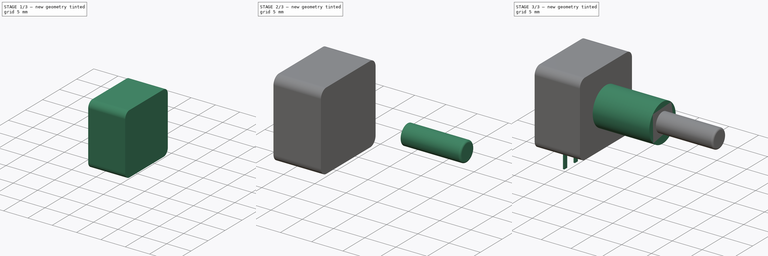
[diagram: build sequence overview — one tinted view per stage of 3, left to right]
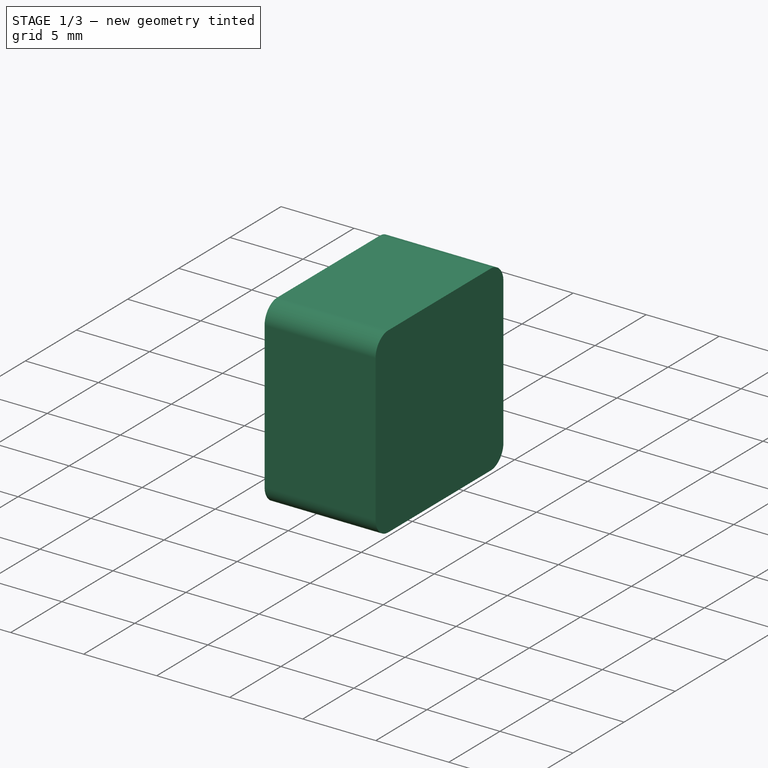
[diagram: stage 1 of 3 — iso view after this stage's code; geometry added in this stage tinted green]
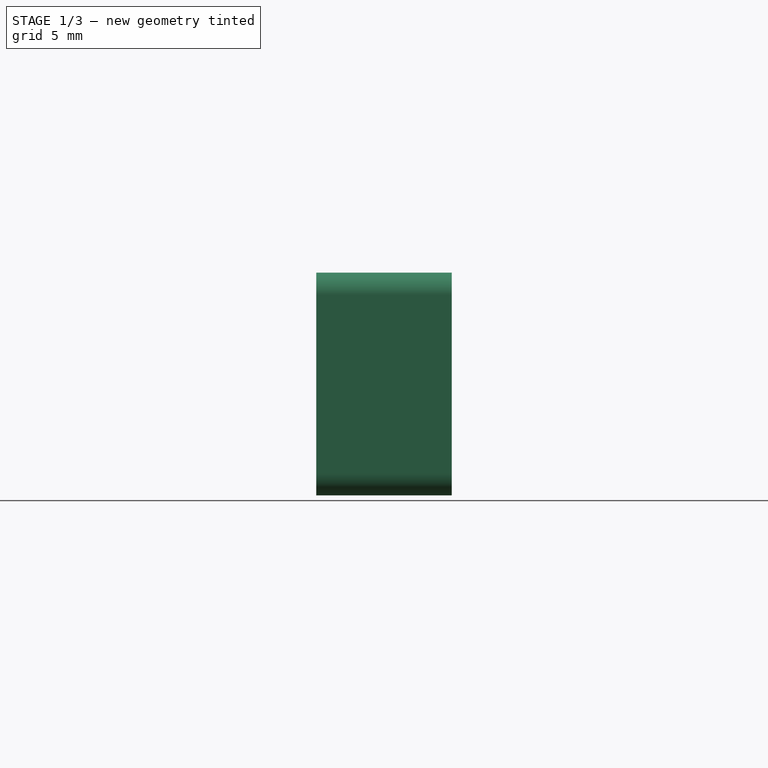
[diagram: stage 1 of 3 — front view after this stage's code; geometry added in this stage tinted green]
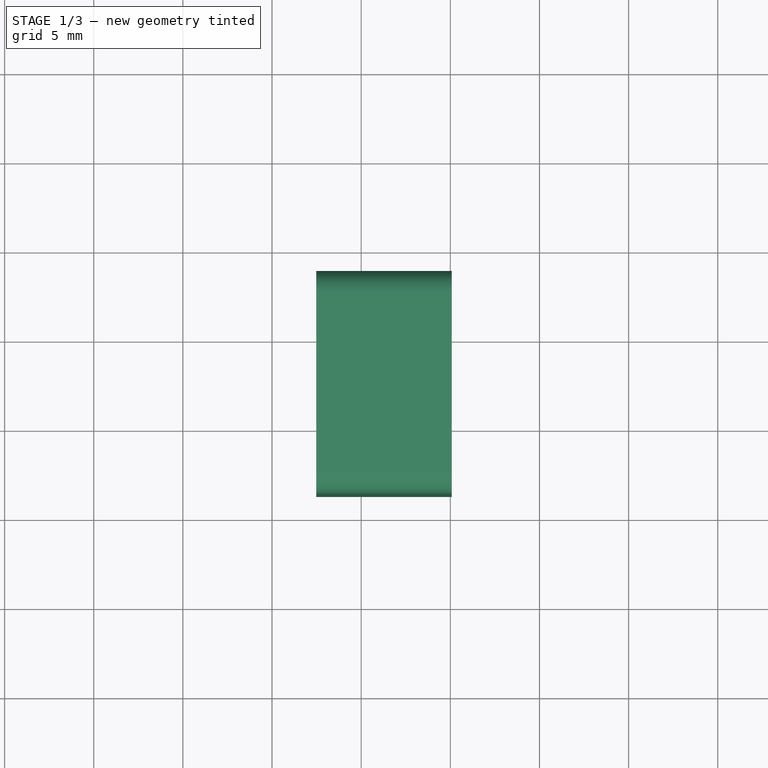
[diagram: stage 1 of 3 — top view after this stage's code; geometry added in this stage tinted green]
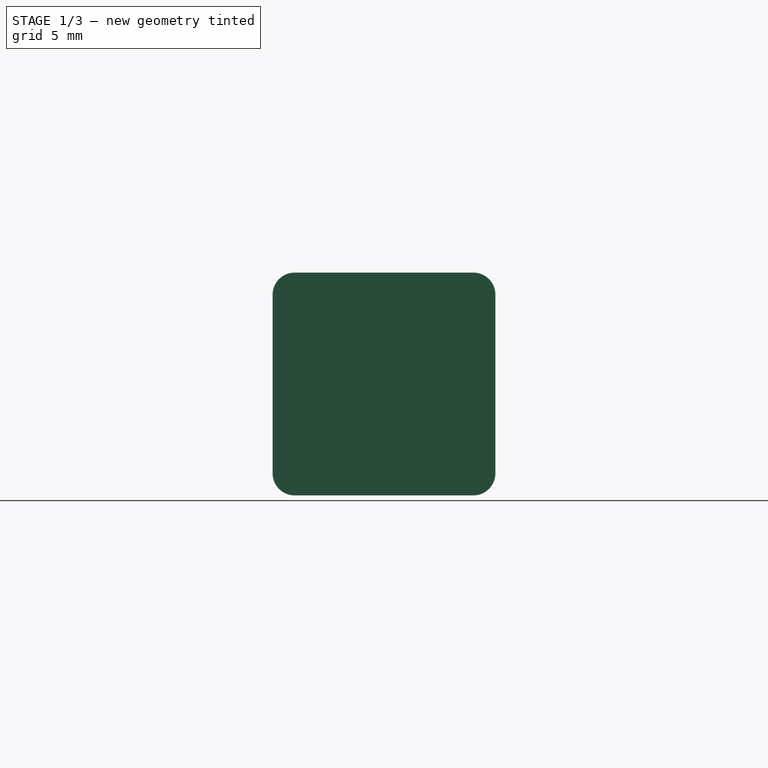
[diagram: stage 1 of 3 — right view after this stage's code; geometry added in this stage tinted green]
FCSTD DOCUMENT  (FreeCAD 0.16R6703 (Git))
Label: Potentiometer_VishaySpectrol_248GH_249GH_Vertical
License: All rights reserved
LicenseURL: http://en.wikipedia.org/wiki/All_rights_reserved
objects: Sketcher::SketchObject×4, PartDesign::Pad×4, PartDesign::Fillet×2, Spreadsheet::Sheet×1
note: 14 computed .brp shape members not serialized (recipe doc carries the construction recipe); baked Part::Feature solids carry a one-line shape summary decoded from their .brp

FEATURE [Spreadsheet::Sheet] Spreadsheet
  cells = A1=var lbody_fab = ; B1(lbody_fab)=-2.52; A2=var tbody_fab = ; B2(tbody_fab)=-8.789999999999999; A3=var wbody_fab = ; B3(wbody_fab)=7.6; A4=var hbody_fab = ; B4(hbody_fab)=12.5; A5=var lscrew_fab = ; B5(lscrew_fab)=5.08; A6=var tscrew_fab = ; B6(tscrew_fab)=-5.715; A7=var wscrew_fab = ; B7(wscrew_fab)=9.5; A8=var hscrew_fab = ; B8(hscrew_fab)=6.35; A9=var lshaft_fab = ; B9(lshaft_fab)=14.58; A10=var tshaft_fab = ; B10(tshaft_fab)=-4.13; A11=var wshaft_fab = ; B11(wshaft_fab)=9.550000000000001; A12=var hshaft_fab = ; B12(hshaft_fab)=3.18; A13=var rmx = ; B13(rmx)=7.62; A14=var rmy = ; B14(rmy)=2.54; A15=var padx = ; B15(padx)=0; A16=var pady = ; B16(pady)=5.08; A17=var d_wire = ; B17(d_wire)=0.7; A18=var height = ; B18(height)=13.1; A19=var screwzpos = ; B19(screwzpos)=6.949999999999999; A20=var mh_rmx = ; B20(mh_rmx)=0; A21=var mh_rmy = ; B21(mh_rmy)=15; A22=var offsetx = ; B22(offsetx)=0; A23=var offsety = ; B23(offsety)=-5.08
FEATURE [Sketcher::SketchObject] Sketch
  Placement = pos=(-2.52,0,0) rot=(0.57735,0.57735,0.57735;2.0944rad)
  expr: Constraints[9] = Spreadsheet.height
  expr: Placement.Base.x = Spreadsheet.lbody_fab
  expr: Constraints[8] = Spreadsheet.tbody_fab
  sketch-geometry (4):
    g0: LineSegment StartX=8.79 StartY=13.1 StartZ=0 EndX=-3.71 EndY=13.1 EndZ=0
    g1: LineSegment StartX=-3.71 StartY=13.1 StartZ=0 EndX=-3.71 EndY=0.6 EndZ=0
    g2: LineSegment StartX=-3.71 StartY=0.6 StartZ=0 EndX=8.79 EndY=0.6 EndZ=0
    g3: LineSegment StartX=8.79 StartY=0.6 StartZ=0 EndX=8.79 EndY=13.1 EndZ=0
  constraints (12):
    c: Coincident(g0,g1)
    c: Coincident(g1,g2)
    c: Coincident(g2,g3)
    c: Coincident(g3,g0)
    c: Horizontal(g0)
    c: Horizontal(g2)
    c: Vertical(g1)
    c: Vertical(g3)
    c: DistanceX(g2,g-1) = -8.79
    c: DistanceY(g-1,g0) = 13.1
    c: DistanceX(g0,g0) = 12.5
    c: DistanceY(g-1,g1) = 0.6
FEATURE [PartDesign::Pad] Pad
  Length = 7.6
  Length2 = 100
  Placement = pos=(-2.52,0,0) rot=(0.57735,0.57735,0.57735;2.0944rad)
  Sketch = -> Sketch
  Type = 0
  expr: Length = abs(Spreadsheet.wbody_fab)
FEATURE [PartDesign::Fillet] Fillet001
  Base = -> Pad [Edge2,Edge1,Edge5,Edge8]
  Placement = pos=(-2.52,0,0) rot=(0.57735,0.57735,0.57735;2.0944rad)
  Radius = 1.25
  expr: Radius = Spreadsheet.hbody_fab * 0.1
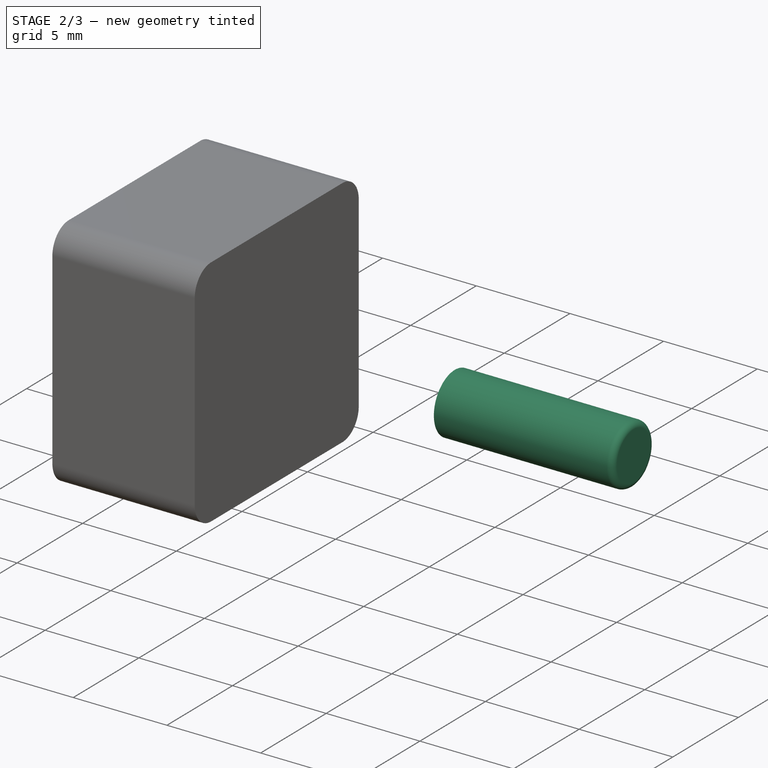
[diagram: stage 2 of 3 — iso view after this stage's code; geometry added in this stage tinted green]
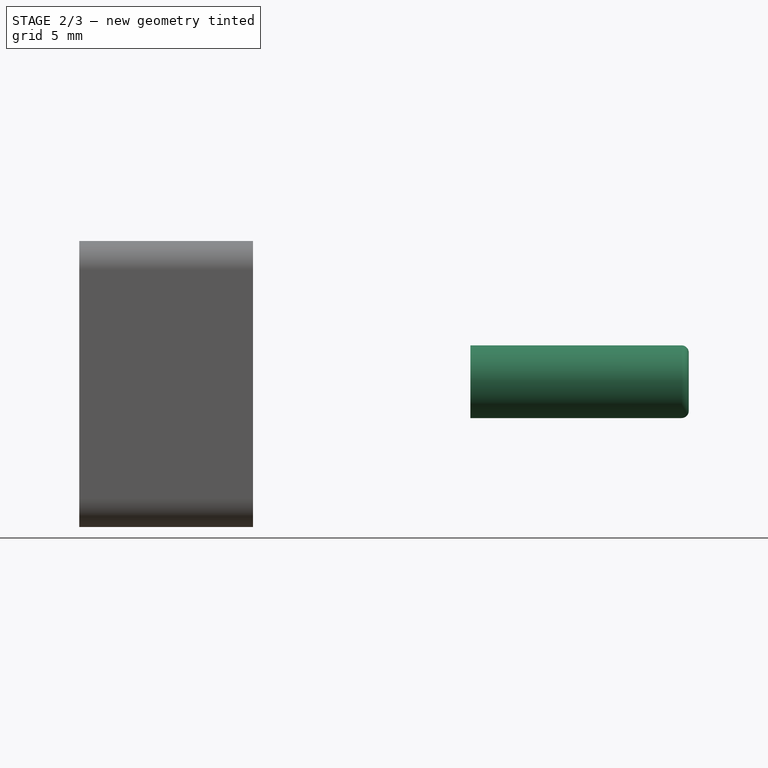
[diagram: stage 2 of 3 — front view after this stage's code; geometry added in this stage tinted green]
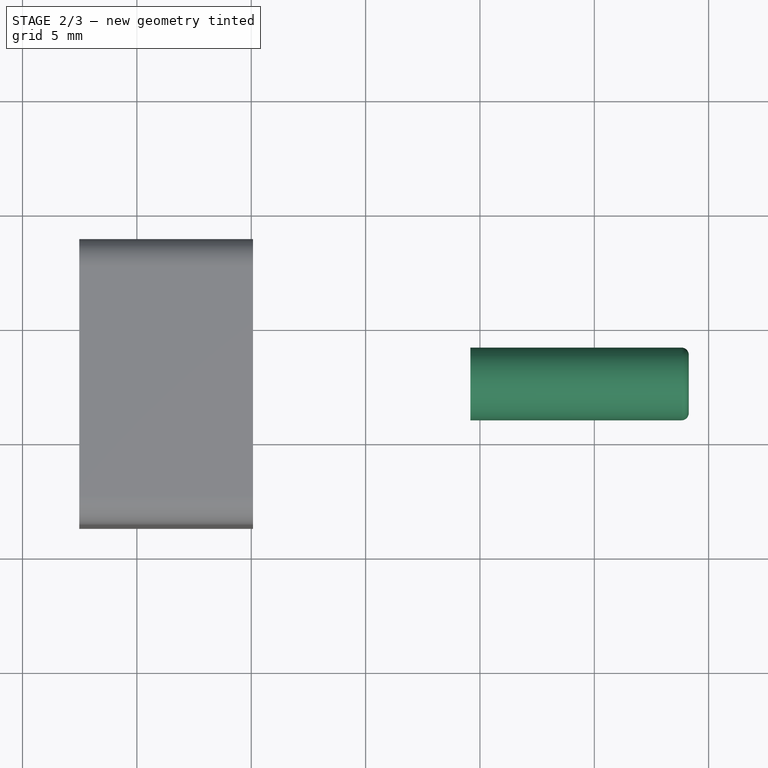
[diagram: stage 2 of 3 — top view after this stage's code; geometry added in this stage tinted green]
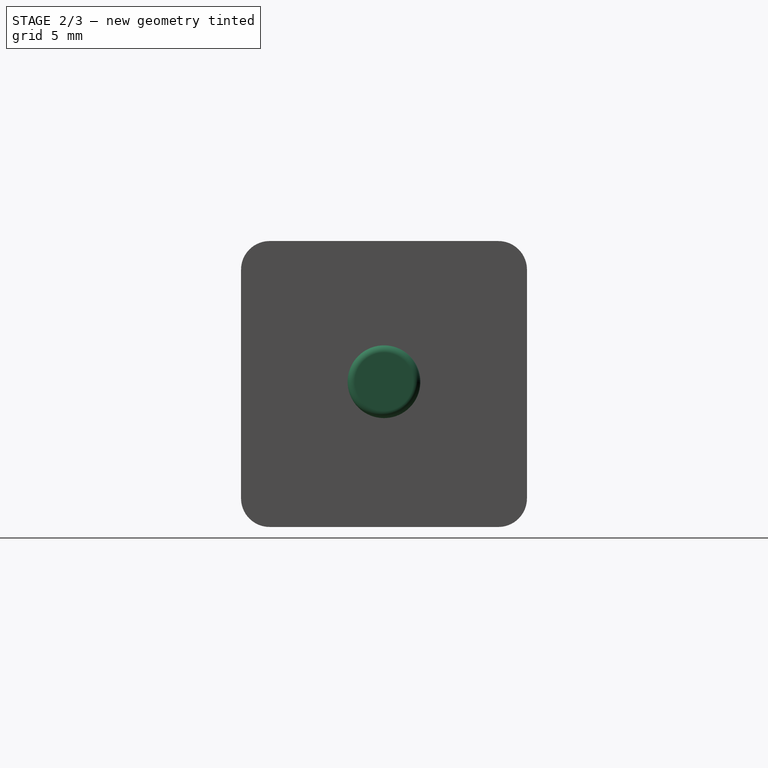
[diagram: stage 2 of 3 — right view after this stage's code; geometry added in this stage tinted green]
FEATURE [Sketcher::SketchObject] Sketch004
  Placement = pos=(14.58,0,0) rot=(0.57735,0.57735,0.57735;2.0944rad)
  expr: Placement.Base.x = Spreadsheet.lshaft_fab
  expr: Constraints[1] = Spreadsheet.screwzpos
  expr: Constraints[0] = Spreadsheet.hshaft_fab / 2
  expr: Constraints[2] = Spreadsheet.tbody_fab + Spreadsheet.hbody_fab / 2
  sketch-geometry (1):
    g0: Circle CenterX=2.54 CenterY=6.95 CenterZ=0 NormalX=0 NormalY=0 NormalZ=1 Radius=1.59
  constraints (3):
    c: Radius(g0) = 1.59
    c: DistanceY(g-1,g0) = 6.95
    c: DistanceX(g0,g-1) = -2.54
FEATURE [PartDesign::Pad] Pad003
  Length = 9.55
  Length2 = 100
  Placement = pos=(14.58,0,0) rot=(0.57735,0.57735,0.57735;2.0944rad)
  Sketch = -> Sketch004
  Type = 0
  expr: Length = Spreadsheet.wshaft_fab
FEATURE [PartDesign::Fillet] Fillet
  Base = -> Pad003 [Edge3]
  Placement = pos=(14.58,0,0) rot=(0.57735,0.57735,0.57735;2.0944rad)
  Radius = 0.318
  expr: Radius = Spreadsheet.hshaft_fab * 0.1
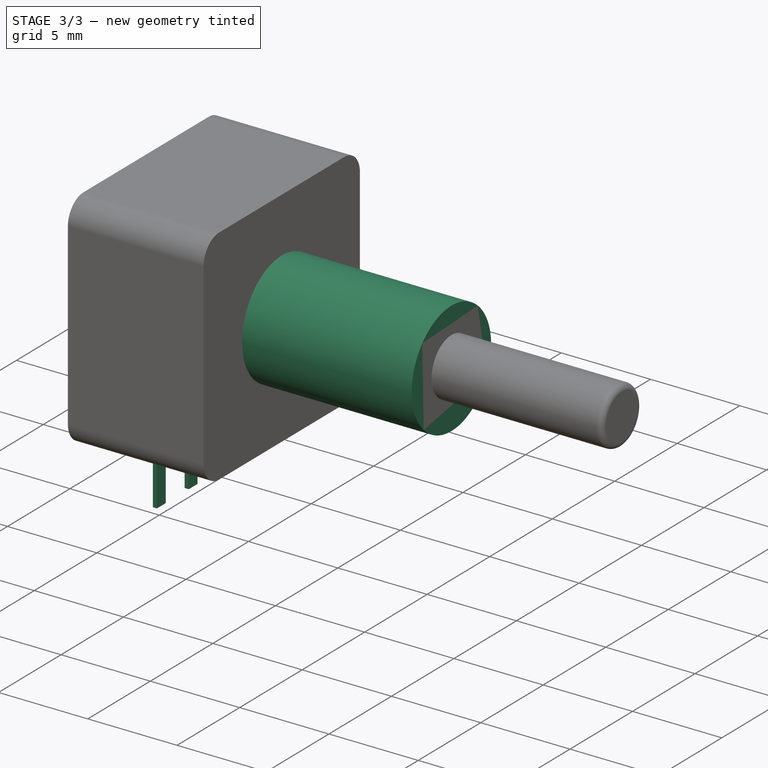
[diagram: stage 3 of 3 — iso view after this stage's code; geometry added in this stage tinted green]
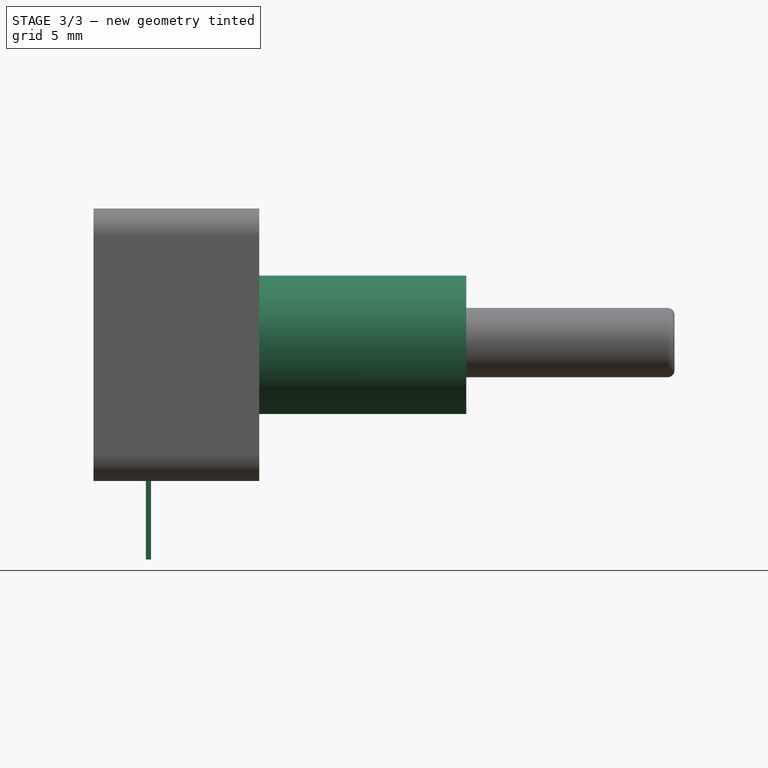
[diagram: stage 3 of 3 — front view after this stage's code; geometry added in this stage tinted green]
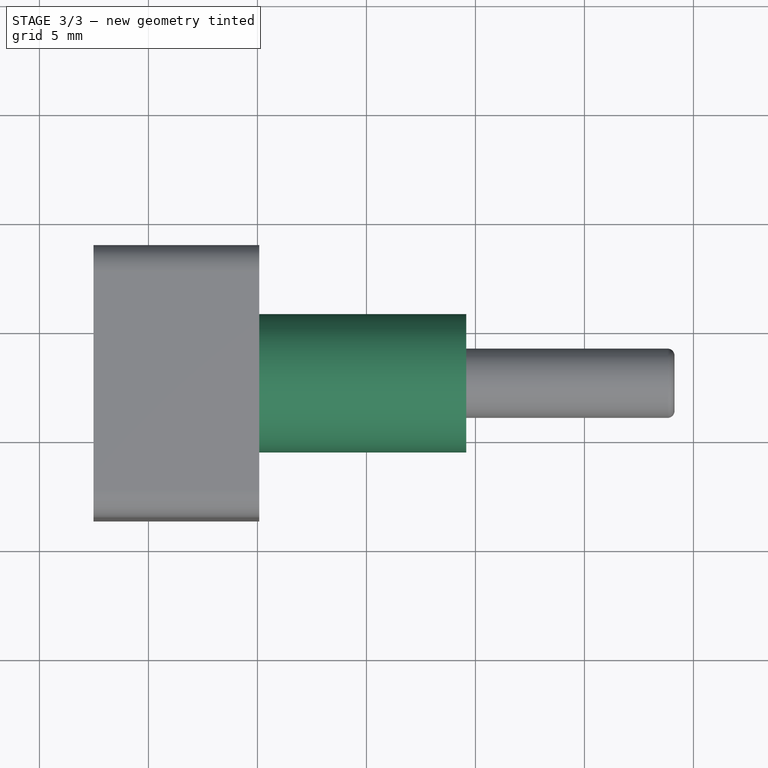
[diagram: stage 3 of 3 — top view after this stage's code; geometry added in this stage tinted green]
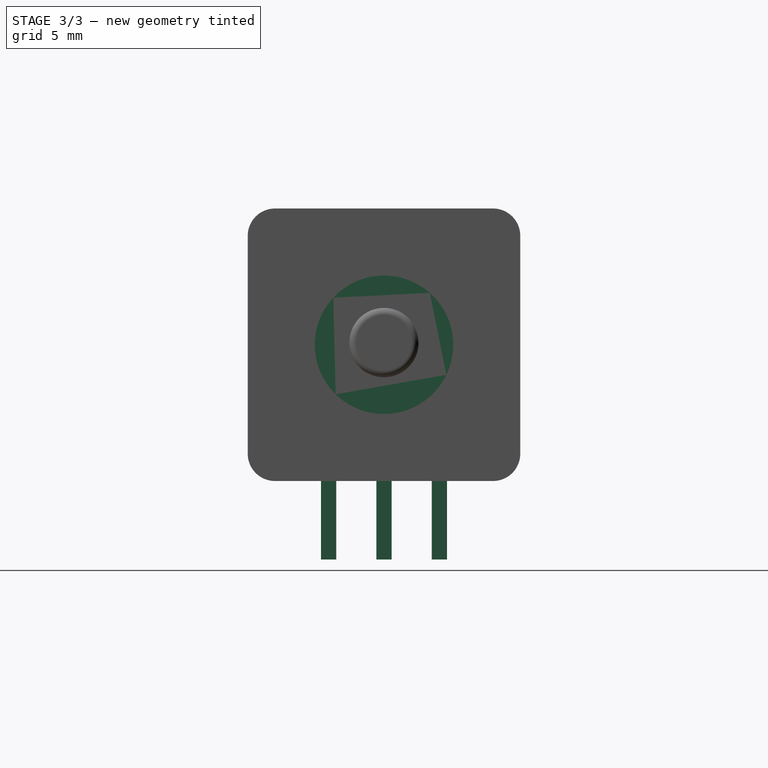
[diagram: stage 3 of 3 — right view after this stage's code; geometry added in this stage tinted green]
FEATURE [Sketcher::SketchObject] Sketch001
  Placement = pos=(14.58,0,0) rot=(0.57735,0.57735,0.57735;2.0944rad)
  expr: Placement.Base.x = Spreadsheet.lshaft_fab
  expr: Constraints[1] = Spreadsheet.height - Spreadsheet.hbody_fab / 2
  expr: Constraints[0] = Spreadsheet.hscrew_fab / 2
  expr: Constraints[2] = Spreadsheet.tbody_fab + Spreadsheet.hbody_fab / 2
  sketch-geometry (1):
    g0: Circle CenterX=2.54 CenterY=6.85 CenterZ=0 NormalX=0 NormalY=0 NormalZ=1 Radius=3.175
  constraints (3):
    c: Radius(g0) = 3.175
    c: DistanceY(g-1,g0) = 6.85
    c: DistanceX(g0,g-1) = -2.54
FEATURE [PartDesign::Pad] Pad001
  Length = 9.5
  Length2 = 100
  Placement = pos=(14.58,0,0) rot=(0.57735,0.57735,0.57735;2.0944rad)
  Reversed = true
  Sketch = -> Sketch001
  Type = 0
  expr: Length = Spreadsheet.wscrew_fab
FEATURE [Sketcher::SketchObject] Sketch003
  Placement = pos=(0,0,0) rot=(0,0,1;3.14159rad)
  expr: Constraints[23] = Spreadsheet.rmy
  expr: Constraints[22] = Spreadsheet.d_wire / 3
  expr: Constraints[35] = Spreadsheet.rmy * 2
  expr: Constraints[36] = Spreadsheet.rmy * 2
  expr: Constraints[24] = Spreadsheet.rmy
  expr: Constraints[8] = Spreadsheet.d_wire / 3
  expr: Constraints[11] = Spreadsheet.d_wire / 2
  expr: Constraints[10] = Spreadsheet.d_wire / 6
  expr: Constraints[9] = Spreadsheet.d_wire
  sketch-geometry (13):
    g0: LineSegment StartX=-0.116667 StartY=0.35 StartZ=0 EndX=0.116667 EndY=0.35 EndZ=0
    g1: LineSegment StartX=0.116667 StartY=0.35 StartZ=0 EndX=0.116667 EndY=-0.35 EndZ=0
    g2: LineSegment StartX=0.116667 StartY=-0.35 StartZ=0 EndX=-0.116667 EndY=-0.35 EndZ=0
    g3: LineSegment StartX=-0.116667 StartY=-0.35 StartZ=0 EndX=-0.116667 EndY=0.35 EndZ=0
    g4: GeomPoint [constr] X=0 Y=0 Z=0
    g5: LineSegment StartX=-0.116667 StartY=-2.19 StartZ=0 EndX=0.116667 EndY=-2.19 EndZ=0
    g6: LineSegment StartX=0.116667 StartY=-2.19 StartZ=0 EndX=0.116667 EndY=-2.89 EndZ=0
    g7: LineSegment StartX=0.116667 StartY=-2.89 StartZ=0 EndX=-0.116667 EndY=-2.89 EndZ=0
    g8: LineSegment StartX=-0.116667 StartY=-2.89 StartZ=0 EndX=-0.116667 EndY=-2.19 EndZ=0
    g9: LineSegment StartX=-0.116667 StartY=-4.73 StartZ=0 EndX=0.116667 EndY=-4.73 EndZ=0
    g10: LineSegment StartX=0.116667 StartY=-4.73 StartZ=0 EndX=0.116667 EndY=-5.43 EndZ=0
    g11: LineSegment StartX=0.116667 StartY=-5.43 StartZ=0 EndX=-0.116667 EndY=-5.43 EndZ=0
    g12: LineSegment StartX=-0.116667 StartY=-5.43 StartZ=0 EndX=-0.116667 EndY=-4.73 EndZ=0
  constraints (37):
    c: Coincident(g0,g1)
    c: Coincident(g1,g2)
    c: Coincident(g2,g3)
    c: Coincident(g3,g0)
    c: Horizontal(g0)
    c: Horizontal(g2)
    c: Vertical(g1)
    c: Vertical(g3)
    c: DistanceX(g0,g0) = 0.233333
    c: DistanceY(g3,g3) = 0.7
    c: DistanceX(g0,g4) = 0.116667
    c: DistanceY(g2,g4) = 0.35
    c: Coincident(g5,g6)
    c: Coincident(g6,g7)
    c: Coincident(g7,g8)
    c: Coincident(g8,g5)
    c: Horizontal(g5)
    c: Horizontal(g7)
    c: Vertical(g6)
    c: Vertical(g8)
    c: Coincident(g4,g-1)
    c: DistanceX(g2,g5) = 0
    c: DistanceX(g2,g5) = 0.233333
    c: DistanceY(g5,g0) = 2.54
    c: DistanceY(g7,g1) = 2.54
    c: Coincident(g9,g10)
    c: Coincident(g10,g11)
    c: Coincident(g11,g12)
    c: Coincident(g12,g9)
    c: Horizontal(g9)
    c: Horizontal(g11)
    c: Vertical(g10)
    c: Vertical(g12)
    c: DistanceX(g9,g2) = 0
    c: DistanceX(g1,g9) = 0
    c: DistanceY(g9,g0) = 5.08
    c: DistanceY(g11,g2) = 5.08
FEATURE [PartDesign::Pad] Pad002
  Length = 1
  Length2 = 3
  Placement = pos=(0,0,0) rot=(0,0,1;3.14159rad)
  Sketch = -> Sketch003
  Type = 4
  expr: Length = 1
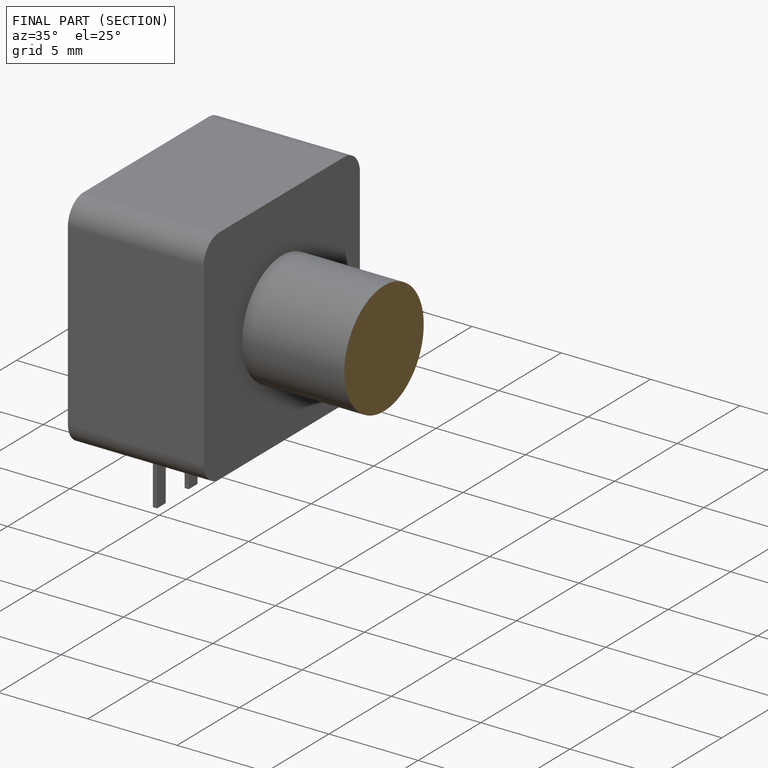
[diagram: finished part — half-section view (interior)]
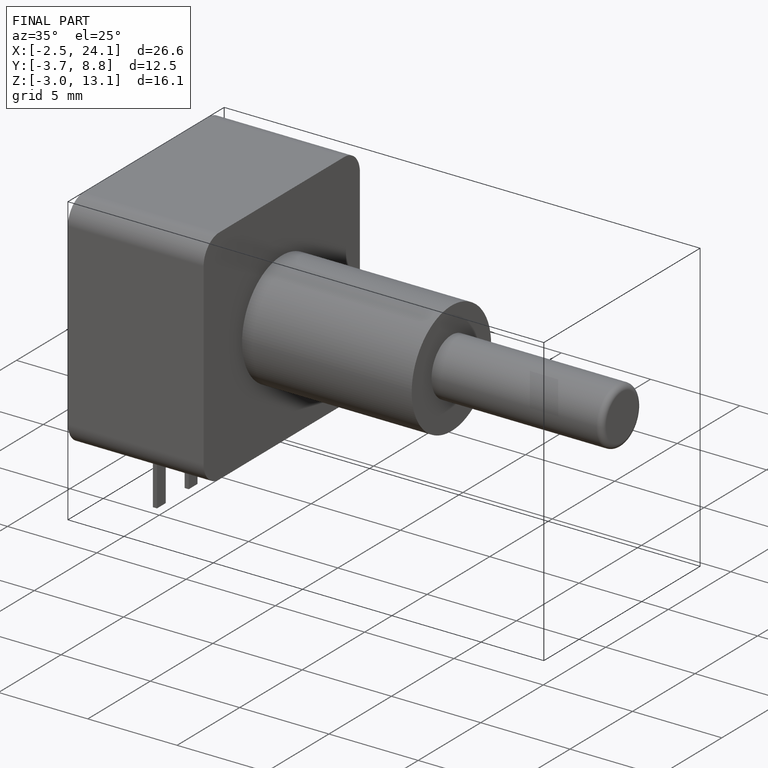
[diagram: finished part — iso view with bounding-box wireframe]
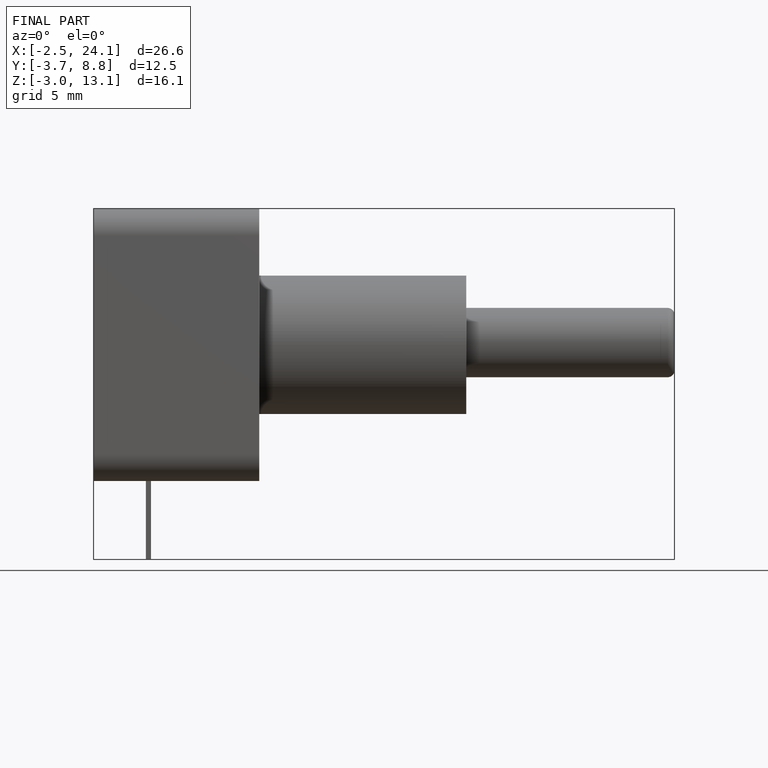
[diagram: finished part — front view with bounding-box wireframe]
